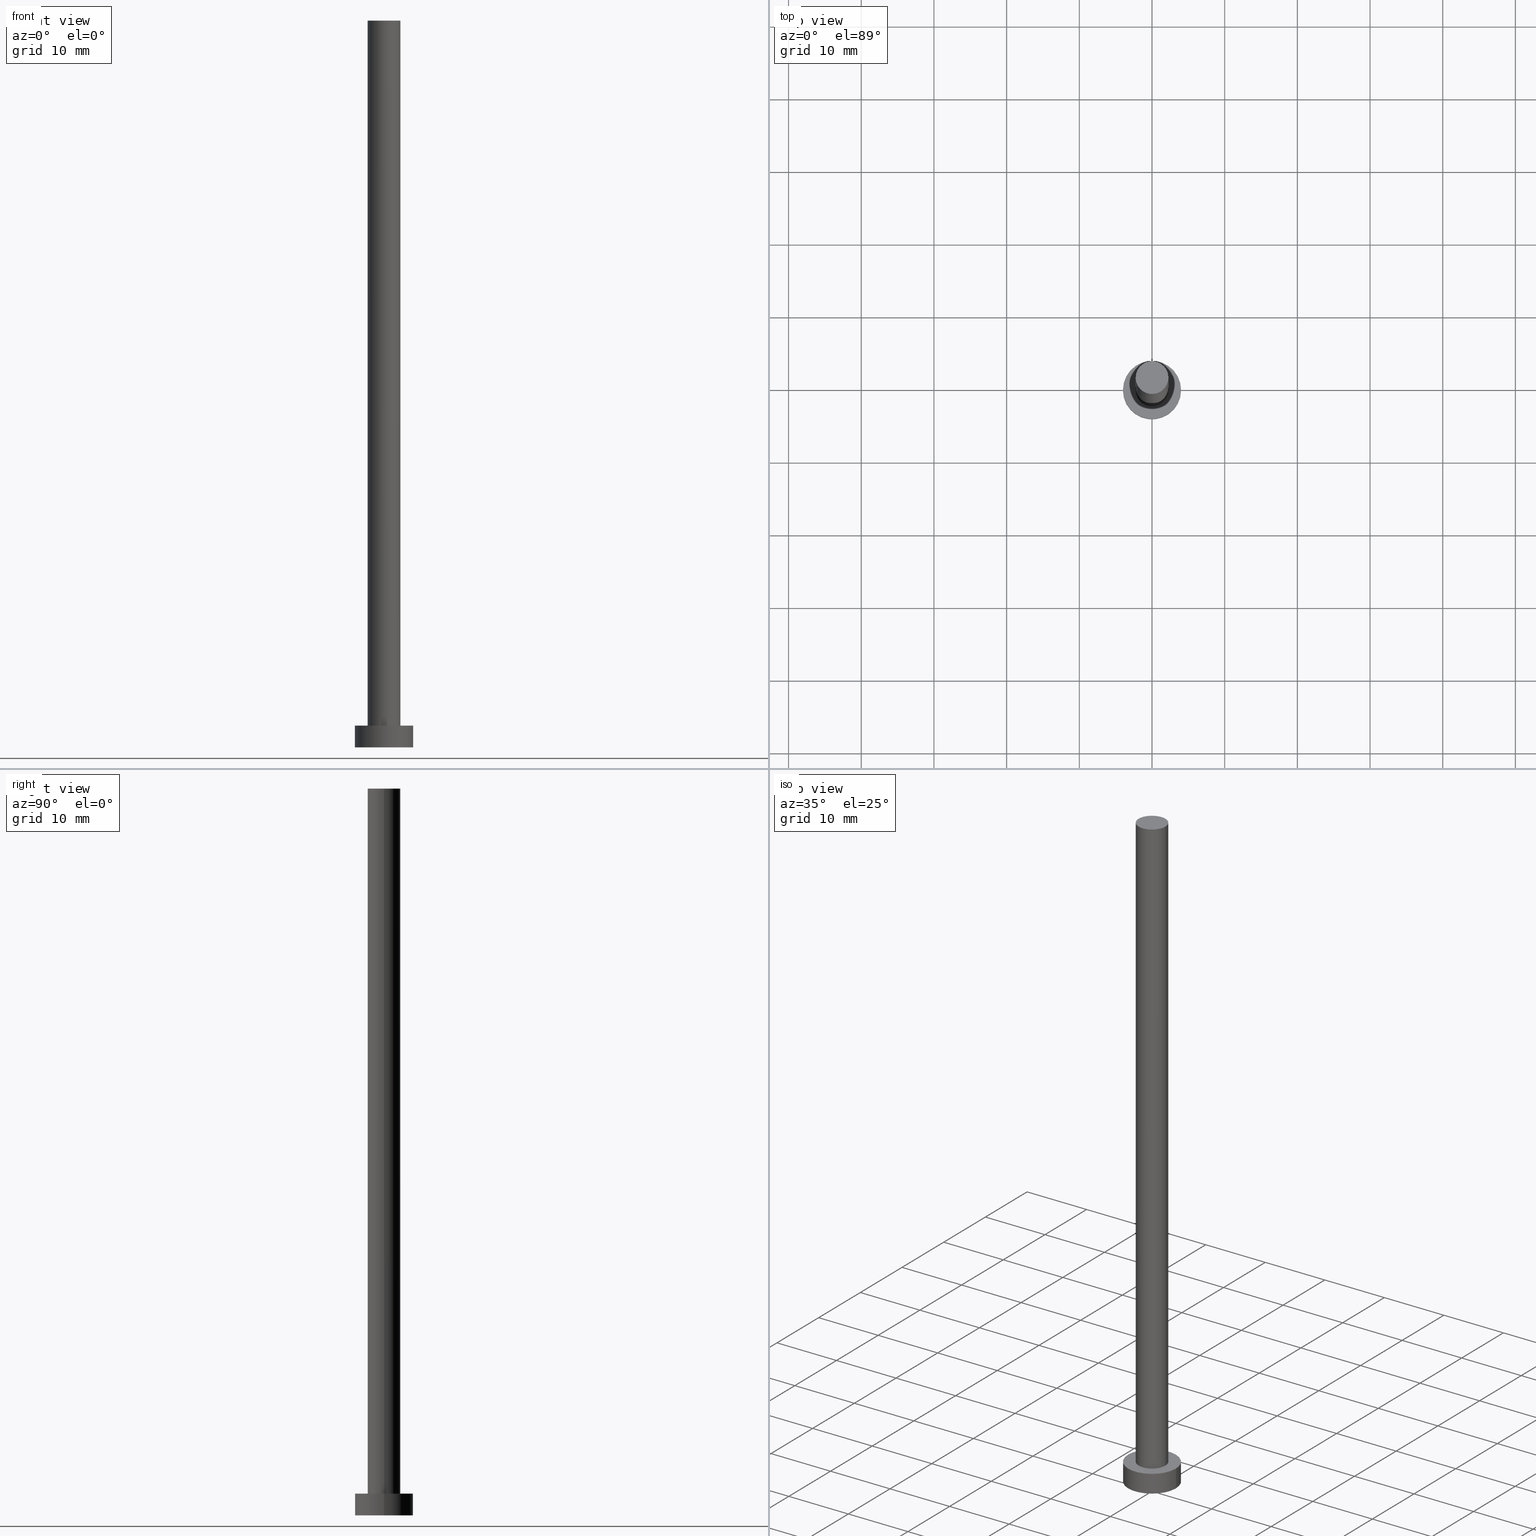
[diagram: canonical four-view strip — front | top / right | iso, engineering-drawing reading convention]
A machine part, canonical four-view strip (front | top / right | iso — engineering-drawing reading convention). The complete STEP part file that produces these views, byte-faithful:
ISO-10303-21;
HEADER;
FILE_DESCRIPTION (( 'STEP AP203' ),
    '1' );
FILE_NAME ('96c1.STEP',
    '2023-02-13T13:55:26',
    ( '' ),
    ( '' ),
    'SwSTEP 2.0',
    'SolidWorks 2019',
    '' );
FILE_SCHEMA (( 'CONFIG_CONTROL_DESIGN' ));
ENDSEC;

DATA;
#1 = PERSON_AND_ORGANIZATION_ROLE ( 'creator' ) ;
#2 = ORIENTED_EDGE ( 'NONE', *, *, #16, .F. ) ;
#3 = DIRECTION ( 'NONE',  ( 0.000000000000000000, 0.000000000000000000, 1.000000000000000000 ) ) ;
#4 = CARTESIAN_POINT ( 'NONE',  ( -2.250000000000000000, 0.000000000000000000, 100.0000000000000000 ) ) ;
#5 = AXIS2_PLACEMENT_3D ( 'NONE', #227, #51, #7 ) ;
#6 = CALENDAR_DATE ( 2023, 13, 2 ) ;
#7 = DIRECTION ( 'NONE',  ( 1.000000000000000000, 0.000000000000000000, 0.000000000000000000 ) ) ;
#8 = CC_DESIGN_PERSON_AND_ORGANIZATION_ASSIGNMENT ( #251, #81, ( #43 ) ) ;
#9 = LOCAL_TIME ( 14, 55, 26.00000000000000000, #209 ) ;
#10 = CALENDAR_DATE ( 2023, 13, 2 ) ;
#11 = CARTESIAN_POINT ( 'NONE',  ( 0.000000000000000000, 0.000000000000000000, 100.0000000000000000 ) ) ;
#12 = DATE_AND_TIME ( #167, #9 ) ;
#13 = ORIENTED_EDGE ( 'NONE', *, *, #36, .F. ) ;
#14 = DIRECTION ( 'NONE',  ( 0.000000000000000000, 0.000000000000000000, 1.000000000000000000 ) ) ;
#15 = CARTESIAN_POINT ( 'NONE',  ( 4.000000000000000000, 4.898587196589412829E-16, 3.000000000000000000 ) ) ;
#16 = EDGE_CURVE ( 'NONE', #60, #247, #206, .T. ) ;
#17 = DIRECTION ( 'NONE',  ( 0.000000000000000000, 0.000000000000000000, 1.000000000000000000 ) ) ;
#18 = ORIENTED_EDGE ( 'NONE', *, *, #71, .F. ) ;
#19 = APPROVAL_DATE_TIME ( #42, #141 ) ;
#20 = EDGE_LOOP ( 'NONE', ( #119, #21 ) ) ;
#21 = ORIENTED_EDGE ( 'NONE', *, *, #89, .F. ) ;
#22 = DIRECTION ( 'NONE',  ( 0.000000000000000000, 0.000000000000000000, 1.000000000000000000 ) ) ;
#23 = CC_DESIGN_APPROVAL ( #154, ( #128 ) ) ;
#24 = ADVANCED_FACE ( 'NONE', ( #47 ), #124, .T. ) ;
#25 = DIRECTION ( 'NONE',  ( -1.000000000000000000, 0.000000000000000000, 0.000000000000000000 ) ) ;
#26 = AXIS2_PLACEMENT_3D ( 'NONE', #164, #73, #224 ) ;
#27 = APPLICATION_PROTOCOL_DEFINITION ( 'international standard', 'config_control_design', 1994, #130 ) ;
#28 = CARTESIAN_POINT ( 'NONE',  ( 0.000000000000000000, 0.000000000000000000, 0.000000000000000000 ) ) ;
#29 = CC_DESIGN_PERSON_AND_ORGANIZATION_ASSIGNMENT ( #137, #219, ( #59 ) ) ;
#30 = CARTESIAN_POINT ( 'NONE',  ( 0.000000000000000000, 0.000000000000000000, 3.000000000000000000 ) ) ;
#31 = DIRECTION ( 'NONE',  ( 0.000000000000000000, 0.000000000000000000, 1.000000000000000000 ) ) ;
#32 = DIRECTION ( 'NONE',  ( -1.000000000000000000, 0.000000000000000000, 0.000000000000000000 ) ) ;
#33 = EDGE_CURVE ( 'NONE', #170, #131, #155, .T. ) ;
#34 = DIRECTION ( 'NONE',  ( -0.000000000000000000, -0.000000000000000000, -1.000000000000000000 ) ) ;
#35 = CIRCLE ( 'NONE', #88, 4.000000000000000000 ) ;
#36 = EDGE_CURVE ( 'NONE', #135, #171, #248, .T. ) ;
#37 = APPROVAL_ROLE ( '' ) ;
#38 = CIRCLE ( 'NONE', #61, 2.250000000000000000 ) ;
#39 = AXIS2_PLACEMENT_3D ( 'NONE', #240, #22, #84 ) ;
#40 = ADVANCED_FACE ( 'NONE', ( #100 ), #192, .T. ) ;
#41 = ORIENTED_EDGE ( 'NONE', *, *, #16, .T. ) ;
#42 = DATE_AND_TIME ( #198, #185 ) ;
#43 = PRODUCT_DEFINITION_FORMATION_WITH_SPECIFIED_SOURCE ( 'LIBOVOLN�', '', #152, .NOT_KNOWN. ) ;
#44 = ORIENTED_EDGE ( 'NONE', *, *, #127, .T. ) ;
#45 = COORDINATED_UNIVERSAL_TIME_OFFSET ( 1, 0, .AHEAD. ) ;
#46 = FACE_OUTER_BOUND ( 'NONE', #234, .T. ) ;
#47 = FACE_OUTER_BOUND ( 'NONE', #236, .T. ) ;
#48 = CARTESIAN_POINT ( 'NONE',  ( 0.000000000000000000, 0.000000000000000000, 3.000000000000000000 ) ) ;
#49 =( NAMED_UNIT ( * ) SI_UNIT ( $, .STERADIAN. ) SOLID_ANGLE_UNIT ( ) );
#50 = DIRECTION ( 'NONE',  ( -0.000000000000000000, -0.000000000000000000, -1.000000000000000000 ) ) ;
#51 = DIRECTION ( 'NONE',  ( 0.000000000000000000, 0.000000000000000000, 1.000000000000000000 ) ) ;
#52 = CC_DESIGN_DATE_AND_TIME_ASSIGNMENT ( #163, #200, ( #59 ) ) ;
#53 = SECURITY_CLASSIFICATION_LEVEL ( 'unclassified' ) ;
#54 = DIRECTION ( 'NONE',  ( 0.000000000000000000, 0.000000000000000000, 1.000000000000000000 ) ) ;
#55 = FACE_BOUND ( 'NONE', #20, .T. ) ;
#56 = CIRCLE ( 'NONE', #114, 2.250000000000000000 ) ;
#57 = DIRECTION ( 'NONE',  ( 1.000000000000000000, 0.000000000000000000, 0.000000000000000000 ) ) ;
#58 = APPROVAL_STATUS ( 'not_yet_approved' ) ;
#59 = PRODUCT_DEFINITION ( 'NEZN�M�', '', #43, #133 ) ;
#60 = VERTEX_POINT ( 'NONE', #111 ) ;
#61 = AXIS2_PLACEMENT_3D ( 'NONE', #48, #145, #229 ) ;
#62 = VERTEX_POINT ( 'NONE', #187 ) ;
#63 = ORIENTED_EDGE ( 'NONE', *, *, #76, .F. ) ;
#64 = CARTESIAN_POINT ( 'NONE',  ( 4.000000000000000000, 4.898587196589412829E-16, 3.000000000000000000 ) ) ;
#65 = ADVANCED_FACE ( 'NONE', ( #55, #90 ), #168, .T. ) ;
#66 = CARTESIAN_POINT ( 'NONE',  ( 0.000000000000000000, 0.000000000000000000, 3.000000000000000000 ) ) ;
#67 = ADVANCED_FACE ( 'NONE', ( #142 ), #122, .F. ) ;
#68 = CARTESIAN_POINT ( 'NONE',  ( 0.000000000000000000, 0.000000000000000000, 3.000000000000000000 ) ) ;
#69 = DIRECTION ( 'NONE',  ( 0.000000000000000000, 0.000000000000000000, 1.000000000000000000 ) ) ;
#70 = CARTESIAN_POINT ( 'NONE',  ( 0.000000000000000000, 0.000000000000000000, 3.000000000000000000 ) ) ;
#71 = EDGE_CURVE ( 'NONE', #247, #171, #244, .T. ) ;
#72 = VECTOR ( 'NONE', #217, 1000.000000000000000 ) ;
#73 = DIRECTION ( 'NONE',  ( -0.000000000000000000, -0.000000000000000000, -1.000000000000000000 ) ) ;
#74 = APPROVAL_DATE_TIME ( #94, #154 ) ;
#75 = PERSON_AND_ORGANIZATION_ROLE ( 'classification_officer' ) ;
#76 = EDGE_CURVE ( 'NONE', #175, #131, #189, .T. ) ;
#77 = PERSON_AND_ORGANIZATION ( #250, #186 ) ;
#78 = DIRECTION ( 'NONE',  ( 1.000000000000000000, 0.000000000000000000, 0.000000000000000000 ) ) ;
#79 = CALENDAR_DATE ( 2023, 13, 2 ) ;
#80 = PRODUCT_DEFINITION_SHAPE ( 'NONE', 'NONE',  #59 ) ;
#81 = PERSON_AND_ORGANIZATION_ROLE ( 'design_supplier' ) ;
#82 = EDGE_LOOP ( 'NONE', ( #18, #149 ) ) ;
#83 = DIRECTION ( 'NONE',  ( 0.000000000000000000, 0.000000000000000000, 1.000000000000000000 ) ) ;
#84 = DIRECTION ( 'NONE',  ( 1.000000000000000000, 0.000000000000000000, 0.000000000000000000 ) ) ;
#85 = DIRECTION ( 'NONE',  ( 0.000000000000000000, 0.000000000000000000, 1.000000000000000000 ) ) ;
#86 = ADVANCED_FACE ( 'NONE', ( #166 ), #245, .T. ) ;
#87 = APPROVAL_PERSON_ORGANIZATION ( #112, #154, #146 ) ;
#88 = AXIS2_PLACEMENT_3D ( 'NONE', #66, #83, #202 ) ;
#89 = EDGE_CURVE ( 'NONE', #131, #170, #38, .T. ) ;
#90 = FACE_OUTER_BOUND ( 'NONE', #156, .T. ) ;
#91 = LOCAL_TIME ( 14, 55, 26.00000000000000000, #174 ) ;
#92 = DIRECTION ( 'NONE',  ( -0.000000000000000000, -0.000000000000000000, -1.000000000000000000 ) ) ;
#93 =( NAMED_UNIT ( * ) PLANE_ANGLE_UNIT ( ) SI_UNIT ( $, .RADIAN. ) );
#94 = DATE_AND_TIME ( #10, #212 ) ;
#95 = MECHANICAL_CONTEXT ( 'NONE', #130, 'mechanical' ) ;
#96 = PRODUCT_RELATED_PRODUCT_CATEGORY ( 'detail', '', ( #152 ) ) ;
#97 = DIRECTION ( 'NONE',  ( -0.000000000000000000, -0.000000000000000000, -1.000000000000000000 ) ) ;
#98 = SHAPE_DEFINITION_REPRESENTATION ( #80, #144 ) ;
#99 = CC_DESIGN_SECURITY_CLASSIFICATION ( #128, ( #43 ) ) ;
#100 = FACE_OUTER_BOUND ( 'NONE', #147, .T. ) ;
#101 = PERSON_AND_ORGANIZATION_ROLE ( 'design_owner' ) ;
#102 = AXIS2_PLACEMENT_3D ( 'NONE', #158, #180, #25 ) ;
#103 = COORDINATED_UNIVERSAL_TIME_OFFSET ( 1, 0, .AHEAD. ) ;
#104 = EDGE_LOOP ( 'NONE', ( #195, #197, #252, #2 ) ) ;
#105 = PERSON_AND_ORGANIZATION ( #250, #186 ) ;
#106 = DIRECTION ( 'NONE',  ( 1.000000000000000000, 0.000000000000000000, -0.000000000000000000 ) ) ;
#107 = DIRECTION ( 'NONE',  ( -0.000000000000000000, -0.000000000000000000, -1.000000000000000000 ) ) ;
#108 = PLANE ( 'NONE',  #211 ) ;
#109 = DIRECTION ( 'NONE',  ( 1.000000000000000000, 0.000000000000000000, -0.000000000000000000 ) ) ;
#110 = EDGE_CURVE ( 'NONE', #171, #247, #121, .T. ) ;
#111 = CARTESIAN_POINT ( 'NONE',  ( -4.000000000000000000, 0.000000000000000000, 3.000000000000000000 ) ) ;
#112 = PERSON_AND_ORGANIZATION ( #250, #186 ) ;
#113 = MANIFOLD_SOLID_BREP ( 'P�idat vysunut�m3', #183 ) ;
#114 = AXIS2_PLACEMENT_3D ( 'NONE', #193, #14, #172 ) ;
#115 = APPROVAL_STATUS ( 'not_yet_approved' ) ;
#116 = COORDINATED_UNIVERSAL_TIME_OFFSET ( 1, 0, .AHEAD. ) ;
#117 = AXIS2_PLACEMENT_3D ( 'NONE', #11, #97, #32 ) ;
#118 = EDGE_CURVE ( 'NONE', #175, #62, #56, .T. ) ;
#119 = ORIENTED_EDGE ( 'NONE', *, *, #33, .F. ) ;
#120 = CARTESIAN_POINT ( 'NONE',  ( -2.250000000000000000, 0.000000000000000000, 3.000000000000000000 ) ) ;
#121 = CIRCLE ( 'NONE', #191, 4.000000000000000000 ) ;
#122 = PLANE ( 'NONE',  #226 ) ;
#123 = ORIENTED_EDGE ( 'NONE', *, *, #150, .T. ) ;
#124 = CYLINDRICAL_SURFACE ( 'NONE', #194, 4.000000000000000000 ) ;
#125 = CARTESIAN_POINT ( 'NONE',  ( 2.250000000000000000, 2.755455298081543792E-16, 100.0000000000000000 ) ) ;
#126 = CARTESIAN_POINT ( 'NONE',  ( 0.000000000000000000, 0.000000000000000000, 100.0000000000000000 ) ) ;
#127 = EDGE_CURVE ( 'NONE', #62, #175, #143, .T. ) ;
#128 = SECURITY_CLASSIFICATION ( '', '', #53 ) ;
#129 = ORIENTED_EDGE ( 'NONE', *, *, #127, .F. ) ;
#130 = APPLICATION_CONTEXT ( 'configuration controlled 3d designs of mechanical parts and assemblies' ) ;
#131 = VERTEX_POINT ( 'NONE', #151 ) ;
#132 = APPROVAL_PERSON_ORGANIZATION ( #105, #141, #196 ) ;
#133 = DESIGN_CONTEXT ( 'detailed design', #243, 'design' ) ;
#134 = AXIS2_PLACEMENT_3D ( 'NONE', #159, #218, #203 ) ;
#135 = VERTEX_POINT ( 'NONE', #64 ) ;
#136 = CARTESIAN_POINT ( 'NONE',  ( 2.250000000000000000, 2.755455298081543792E-16, 100.0000000000000000 ) ) ;
#137 = PERSON_AND_ORGANIZATION ( #250, #186 ) ;
#138 = LINE ( 'NONE', #4, #72 ) ;
#139 = APPROVAL ( #58, 'NEUR�EN�' ) ;
#140 = CIRCLE ( 'NONE', #39, 4.000000000000000000 ) ;
#141 = APPROVAL ( #241, 'NEUR�EN�' ) ;
#142 = FACE_OUTER_BOUND ( 'NONE', #82, .T. ) ;
#143 = CIRCLE ( 'NONE', #254, 2.250000000000000000 ) ;
#144 = ADVANCED_BREP_SHAPE_REPRESENTATION ( '96c1', ( #113, #134 ), #148 ) ;
#145 = DIRECTION ( 'NONE',  ( 0.000000000000000000, 0.000000000000000000, 1.000000000000000000 ) ) ;
#146 = APPROVAL_ROLE ( '' ) ;
#147 = EDGE_LOOP ( 'NONE', ( #249, #239, #177, #255 ) ) ;
#148 =( GEOMETRIC_REPRESENTATION_CONTEXT ( 3 ) GLOBAL_UNCERTAINTY_ASSIGNED_CONTEXT ( ( #237 ) ) GLOBAL_UNIT_ASSIGNED_CONTEXT ( ( #190, #93, #49 ) ) REPRESENTATION_CONTEXT ( 'NONE', 'WORKASPACE' ) );
#149 = ORIENTED_EDGE ( 'NONE', *, *, #110, .F. ) ;
#150 = EDGE_CURVE ( 'NONE', #60, #135, #140, .T. ) ;
#151 = CARTESIAN_POINT ( 'NONE',  ( 2.250000000000000000, 2.755455298081543792E-16, 3.000000000000000000 ) ) ;
#152 = PRODUCT ( '96c1', '96c1', '', ( #95 ) ) ;
#153 = ORIENTED_EDGE ( 'NONE', *, *, #118, .T. ) ;
#154 = APPROVAL ( #115, 'NEUR�EN�' ) ;
#155 = CIRCLE ( 'NONE', #253, 2.250000000000000000 ) ;
#156 = EDGE_LOOP ( 'NONE', ( #123, #214 ) ) ;
#157 = ORIENTED_EDGE ( 'NONE', *, *, #179, .T. ) ;
#158 = CARTESIAN_POINT ( 'NONE',  ( 0.000000000000000000, 0.000000000000000000, 3.000000000000000000 ) ) ;
#159 = CARTESIAN_POINT ( 'NONE',  ( 0.000000000000000000, 0.000000000000000000, 0.000000000000000000 ) ) ;
#160 = DATE_AND_TIME ( #79, #91 ) ;
#161 = VECTOR ( 'NONE', #50, 1000.000000000000000 ) ;
#162 = DIRECTION ( 'NONE',  ( 1.000000000000000000, 0.000000000000000000, 0.000000000000000000 ) ) ;
#163 = DATE_AND_TIME ( #6, #207 ) ;
#164 = CARTESIAN_POINT ( 'NONE',  ( 0.000000000000000000, 0.000000000000000000, 100.0000000000000000 ) ) ;
#165 = CC_DESIGN_APPROVAL ( #141, ( #43 ) ) ;
#166 = FACE_OUTER_BOUND ( 'NONE', #225, .T. ) ;
#167 = CALENDAR_DATE ( 2023, 13, 2 ) ;
#168 = PLANE ( 'NONE',  #199 ) ;
#169 = APPLICATION_PROTOCOL_DEFINITION ( 'international standard', 'config_control_design', 1994, #243 ) ;
#170 = VERTEX_POINT ( 'NONE', #120 ) ;
#171 = VERTEX_POINT ( 'NONE', #204 ) ;
#172 = DIRECTION ( 'NONE',  ( 1.000000000000000000, 0.000000000000000000, 0.000000000000000000 ) ) ;
#173 = PERSON_AND_ORGANIZATION ( #250, #186 ) ;
#174 = COORDINATED_UNIVERSAL_TIME_OFFSET ( 1, 0, .AHEAD. ) ;
#175 = VERTEX_POINT ( 'NONE', #136 ) ;
#176 = PERSON_AND_ORGANIZATION ( #250, #186 ) ;
#177 = ORIENTED_EDGE ( 'NONE', *, *, #89, .T. ) ;
#178 = FACE_OUTER_BOUND ( 'NONE', #104, .T. ) ;
#179 = EDGE_CURVE ( 'NONE', #62, #170, #138, .T. ) ;
#180 = DIRECTION ( 'NONE',  ( -0.000000000000000000, -0.000000000000000000, -1.000000000000000000 ) ) ;
#181 = DIRECTION ( 'NONE',  ( -1.000000000000000000, 0.000000000000000000, 0.000000000000000000 ) ) ;
#182 = APPROVAL_DATE_TIME ( #160, #139 ) ;
#183 = CLOSED_SHELL ( 'NONE', ( #40, #232, #24, #65, #67, #86, #246 ) ) ;
#184 = CARTESIAN_POINT ( 'NONE',  ( 0.000000000000000000, 0.000000000000000000, 100.0000000000000000 ) ) ;
#185 = LOCAL_TIME ( 14, 55, 26.00000000000000000, #103 ) ;
#186 = ORGANIZATION ( 'NEUR�EN�', 'NEUR�EN�', '' ) ;
#187 = CARTESIAN_POINT ( 'NONE',  ( -2.250000000000000000, 0.000000000000000000, 100.0000000000000000 ) ) ;
#188 = CC_DESIGN_PERSON_AND_ORGANIZATION_ASSIGNMENT ( #173, #101, ( #152 ) ) ;
#189 = LINE ( 'NONE', #125, #235 ) ;
#190 =( LENGTH_UNIT ( ) NAMED_UNIT ( * ) SI_UNIT ( .MILLI., .METRE. ) );
#191 = AXIS2_PLACEMENT_3D ( 'NONE', #28, #54, #57 ) ;
#192 = CYLINDRICAL_SURFACE ( 'NONE', #117, 2.250000000000000000 ) ;
#193 = CARTESIAN_POINT ( 'NONE',  ( 0.000000000000000000, 0.000000000000000000, 100.0000000000000000 ) ) ;
#194 = AXIS2_PLACEMENT_3D ( 'NONE', #68, #107, #181 ) ;
#195 = ORIENTED_EDGE ( 'NONE', *, *, #213, .F. ) ;
#196 = APPROVAL_ROLE ( '' ) ;
#197 = ORIENTED_EDGE ( 'NONE', *, *, #36, .T. ) ;
#198 = CALENDAR_DATE ( 2023, 13, 2 ) ;
#199 = AXIS2_PLACEMENT_3D ( 'NONE', #70, #31, #109 ) ;
#200 = DATE_TIME_ROLE ( 'creation_date' ) ;
#201 = ORIENTED_EDGE ( 'NONE', *, *, #71, .T. ) ;
#202 = DIRECTION ( 'NONE',  ( 1.000000000000000000, 0.000000000000000000, 0.000000000000000000 ) ) ;
#203 = DIRECTION ( 'NONE',  ( 1.000000000000000000, 0.000000000000000000, 0.000000000000000000 ) ) ;
#204 = CARTESIAN_POINT ( 'NONE',  ( 4.000000000000000000, 4.898587196589412829E-16, 0.000000000000000000 ) ) ;
#205 = CC_DESIGN_DATE_AND_TIME_ASSIGNMENT ( #12, #228, ( #128 ) ) ;
#206 = LINE ( 'NONE', #222, #161 ) ;
#207 = LOCAL_TIME ( 14, 55, 26.00000000000000000, #45 ) ;
#208 = CARTESIAN_POINT ( 'NONE',  ( 0.000000000000000000, 0.000000000000000000, 0.000000000000000000 ) ) ;
#209 = COORDINATED_UNIVERSAL_TIME_OFFSET ( 1, 0, .AHEAD. ) ;
#210 = VECTOR ( 'NONE', #34, 1000.000000000000000 ) ;
#211 = AXIS2_PLACEMENT_3D ( 'NONE', #184, #3, #106 ) ;
#212 = LOCAL_TIME ( 14, 55, 26.00000000000000000, #116 ) ;
#213 = EDGE_CURVE ( 'NONE', #135, #60, #35, .T. ) ;
#214 = ORIENTED_EDGE ( 'NONE', *, *, #213, .T. ) ;
#215 = APPROVAL_PERSON_ORGANIZATION ( #77, #139, #37 ) ;
#216 = ORIENTED_EDGE ( 'NONE', *, *, #33, .T. ) ;
#217 = DIRECTION ( 'NONE',  ( -0.000000000000000000, -0.000000000000000000, -1.000000000000000000 ) ) ;
#218 = DIRECTION ( 'NONE',  ( 0.000000000000000000, 0.000000000000000000, 1.000000000000000000 ) ) ;
#219 = PERSON_AND_ORGANIZATION_ROLE ( 'creator' ) ;
#220 = CYLINDRICAL_SURFACE ( 'NONE', #102, 4.000000000000000000 ) ;
#221 = CC_DESIGN_PERSON_AND_ORGANIZATION_ASSIGNMENT ( #230, #75, ( #128 ) ) ;
#222 = CARTESIAN_POINT ( 'NONE',  ( -4.000000000000000000, 0.000000000000000000, 3.000000000000000000 ) ) ;
#223 = DIRECTION ( 'NONE',  ( 1.000000000000000000, 0.000000000000000000, -0.000000000000000000 ) ) ;
#224 = DIRECTION ( 'NONE',  ( -1.000000000000000000, 0.000000000000000000, 0.000000000000000000 ) ) ;
#225 = EDGE_LOOP ( 'NONE', ( #63, #129, #157, #216 ) ) ;
#226 = AXIS2_PLACEMENT_3D ( 'NONE', #208, #69, #223 ) ;
#227 = CARTESIAN_POINT ( 'NONE',  ( 0.000000000000000000, 0.000000000000000000, 0.000000000000000000 ) ) ;
#228 = DATE_TIME_ROLE ( 'classification_date' ) ;
#229 = DIRECTION ( 'NONE',  ( 1.000000000000000000, 0.000000000000000000, 0.000000000000000000 ) ) ;
#230 = PERSON_AND_ORGANIZATION ( #250, #186 ) ;
#231 = ORIENTED_EDGE ( 'NONE', *, *, #150, .F. ) ;
#232 = ADVANCED_FACE ( 'NONE', ( #178 ), #220, .T. ) ;
#233 = CC_DESIGN_APPROVAL ( #139, ( #59 ) ) ;
#234 = EDGE_LOOP ( 'NONE', ( #44, #153 ) ) ;
#235 = VECTOR ( 'NONE', #92, 1000.000000000000000 ) ;
#236 = EDGE_LOOP ( 'NONE', ( #13, #231, #41, #201 ) ) ;
#237 = UNCERTAINTY_MEASURE_WITH_UNIT (LENGTH_MEASURE( 1.000000000000000082E-05 ), #190, 'distance_accuracy_value', 'NONE');
#238 = CARTESIAN_POINT ( 'NONE',  ( -4.000000000000000000, 0.000000000000000000, 0.000000000000000000 ) ) ;
#239 = ORIENTED_EDGE ( 'NONE', *, *, #76, .T. ) ;
#240 = CARTESIAN_POINT ( 'NONE',  ( 0.000000000000000000, 0.000000000000000000, 3.000000000000000000 ) ) ;
#241 = APPROVAL_STATUS ( 'not_yet_approved' ) ;
#242 = CC_DESIGN_PERSON_AND_ORGANIZATION_ASSIGNMENT ( #176, #1, ( #43 ) ) ;
#243 = APPLICATION_CONTEXT ( 'configuration controlled 3d designs of mechanical parts and assemblies' ) ;
#244 = CIRCLE ( 'NONE', #5, 4.000000000000000000 ) ;
#245 = CYLINDRICAL_SURFACE ( 'NONE', #26, 2.250000000000000000 ) ;
#246 = ADVANCED_FACE ( 'NONE', ( #46 ), #108, .T. ) ;
#247 = VERTEX_POINT ( 'NONE', #238 ) ;
#248 = LINE ( 'NONE', #15, #210 ) ;
#249 = ORIENTED_EDGE ( 'NONE', *, *, #118, .F. ) ;
#250 = PERSON ( 'NEUR�EN�', 'NEUR�EN�', 'NEUR�EN�', ('NEUR�EN�'), ('NEUR�EN�'), ('NEUR�EN�') ) ;
#251 = PERSON_AND_ORGANIZATION ( #250, #186 ) ;
#252 = ORIENTED_EDGE ( 'NONE', *, *, #110, .T. ) ;
#253 = AXIS2_PLACEMENT_3D ( 'NONE', #30, #85, #162 ) ;
#254 = AXIS2_PLACEMENT_3D ( 'NONE', #126, #17, #78 ) ;
#255 = ORIENTED_EDGE ( 'NONE', *, *, #179, .F. ) ;
ENDSEC;
END-ISO-10303-21;
